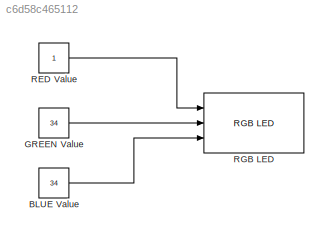
MODEL slx_c6d58c465112
KIND model
CONFIG AbsTol = auto
CONFIG EnableMultiTasking = on
CONFIG FixedStep = auto
CONFIG MaxStep = auto
CONFIG MinStep = auto
CONFIG RelTol = 1e-3
CONFIG SampleTimeConstraint = Unconstrained
CONFIG Solver = FixedStepDiscrete
CONFIG SolverName = FixedStepDiscrete
CONFIG StartTime = 0.0
CONFIG StopTime = 10.0
BLOCK [Constant] BLUE Value
  SampleTime = 1
  Value = 34
BLOCK [Constant] GREEN Value
  SampleTime = 1
  Value = 34
BLOCK [Constant] RED Value
  OutDataTypeStr = uint8
  SampleTime = 1
BLOCK [Reference] RGB LED  REF=frdmkl25zlib/RGB LED
  Ports = [3]
  SourceBlock = frdmkl25zlib/RGB LED
  SourceType = RGB LED
LINE BLUE Value:1 -> RGB LED:3
LINE GREEN Value:1 -> RGB LED:2
LINE RED Value:1 -> RGB LED:1
